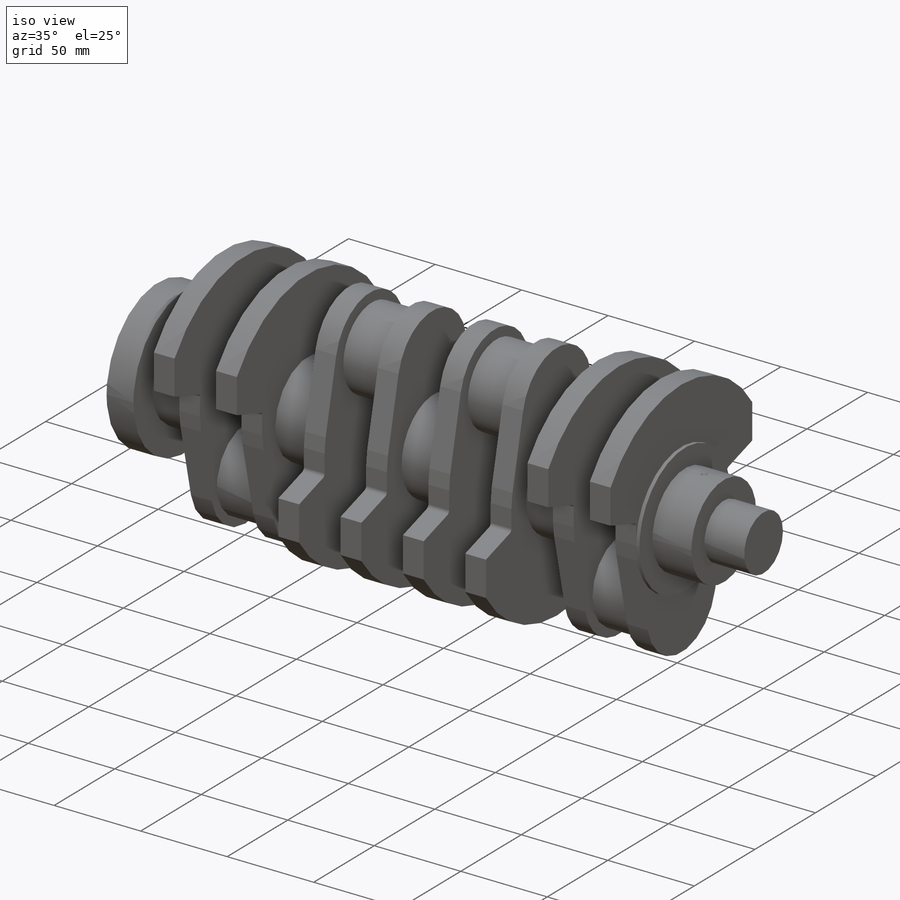
[diagram: iso view]
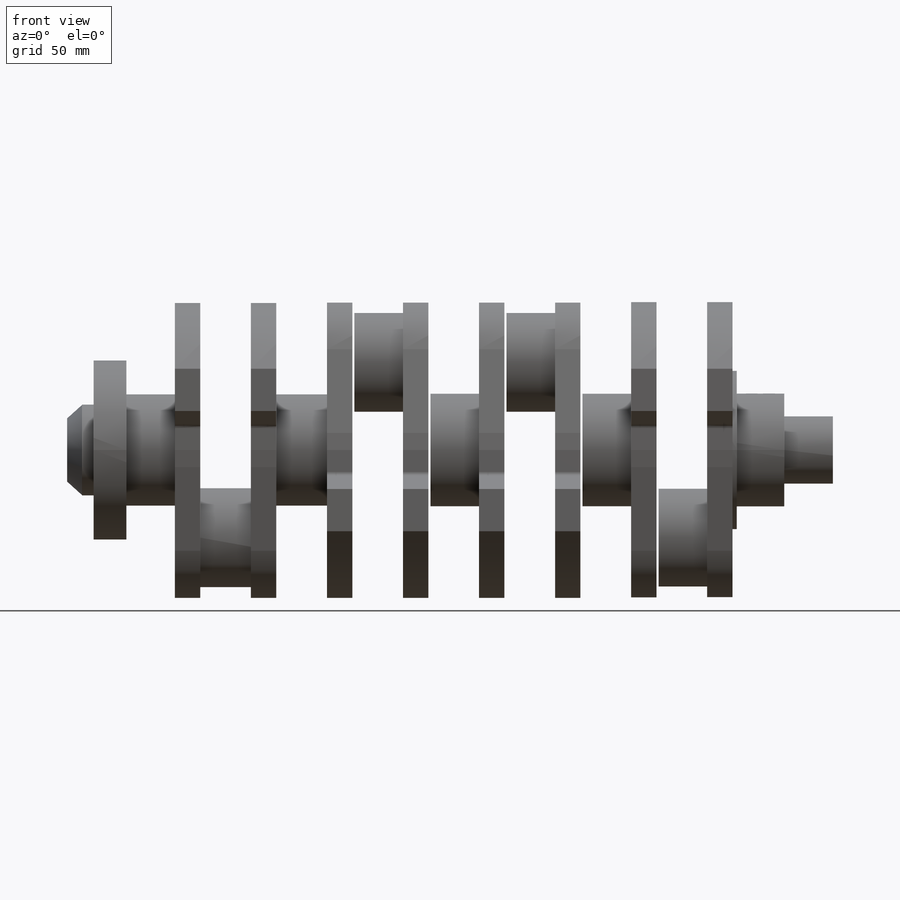
[diagram: front view]
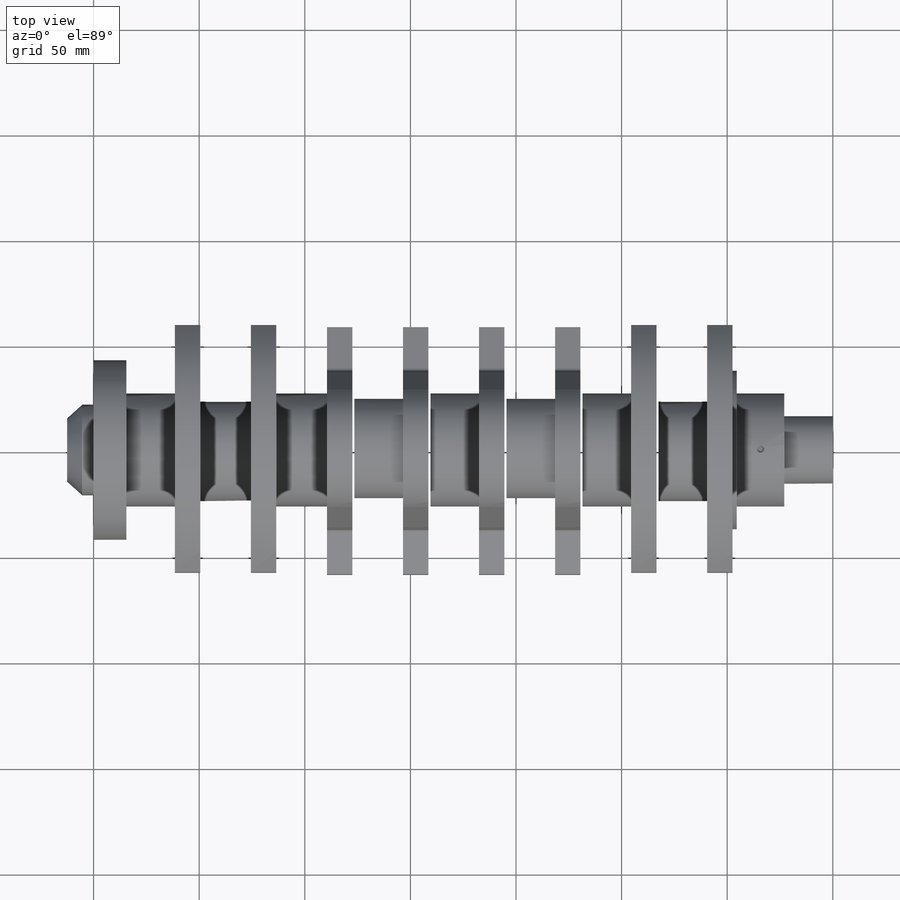
[diagram: top view]
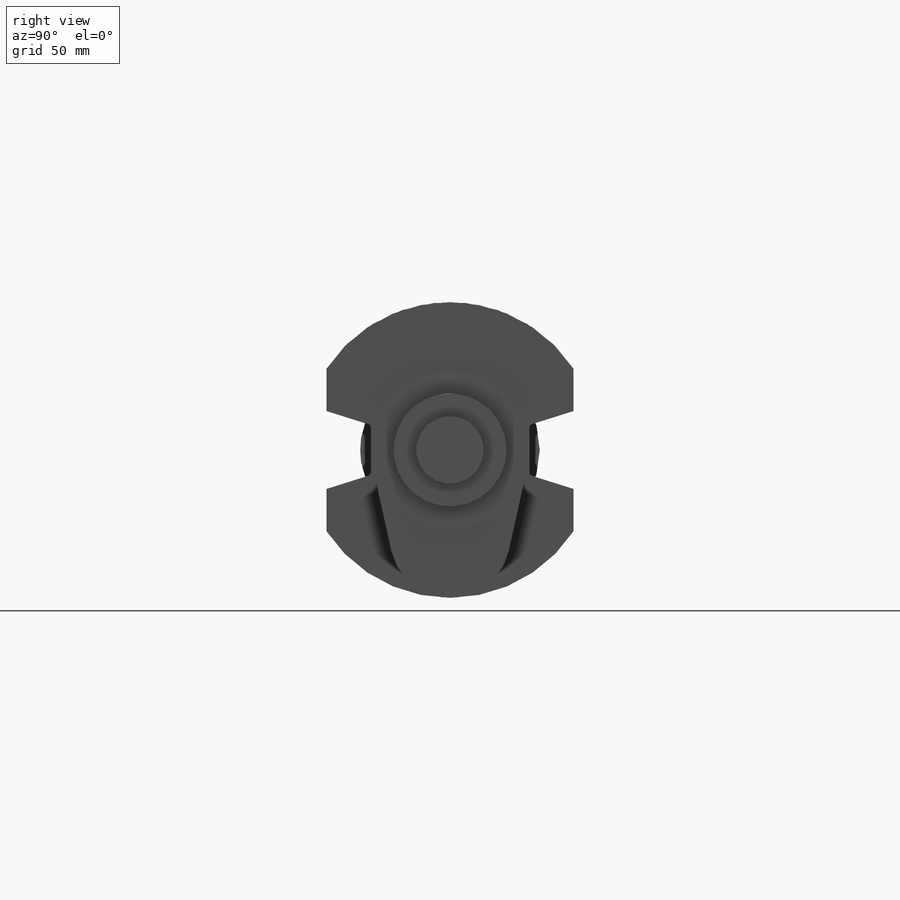
[diagram: right view]
SOLIDWORKS PART (.sldprt)
format: sldprt  version: not decoded by parser v0  size: 625,664 bytes
history: native  units: mm
features: sketch x25, extrude x22, plane x12, fillet x2, material x1, cut_extrude x1, cut_revolve x1 (+13 scaffold rows collapsed)
feature tree (77):
  scaffold x13  (default folders/planes/origin — collapsed)
  material  "Material <não especificado>"
  plane  "Plano frontal"
  plane  "Plano superior"
  plane  "Plano direito"
  sketch  "Esboço1"  dims[D1=32.0mm]
  extrude  "Extrusão1"  Depth=23mm
  sketch  "Esboço2"  dims[D1=53.5mm]
  extrude  "Extrusão2"  Depth=22.5mm
  plane  "Plano1"  Offset=2mm
  sketch  "Esboço5"  dims[c1.D1=75.0mm c1.D3=57.0mm c1.D4=70.0mm c1.D2=41.5mm c1.D5=58.5mm c1.D6=58.5mm c2.D5=20.0mm c2.D6=20.0mm]
  extrude  "Extrusão4"  Depth=12mm
  fillet  "Filete1"  Radius=2mm
  fillet  "Filete2"  Radius=2mm
  plane  "Plano2"  Offset=24mm
  sketch  "Esboço9"  dims[D1=0.0mm]
  sketch  "Esboço10"  dims[D1=47.0mm]
  extrude  "Extrusão7"  Depth=23mm
  extrude  "Extrusão8"  Depth=12mm
  plane  "Plano5"  Offset=24mm
  sketch  "Esboço16"  dims[D1=0.0mm]
  extrude  "Extrusão14"  Depth=12mm
  plane  "Plano6"  Offset=24mm
  sketch  "Esboço17"  dims[D1=0.0mm]
  extrude  "Extrusão15"  Depth=12mm
  plane  "Plano7"  Offset=24mm
  sketch  "Esboço18"  dims[D1=0.0mm]
  extrude  "Extrusão16"  Depth=12mm
  plane  "Plano8"  Offset=24mm
  sketch  "Esboço19"  dims[D1=0.0mm]
  extrude  "Extrusão17"  Depth=12mm
  sketch  "Esboço20"  dims[D1=53.5mm]
  extrude  "Extrusão18"  Depth=23mm
  sketch  "Esboço21"  dims[D1=47.0mm]
  extrude  "Extrusão19"  Depth=23mm
  sketch  "Esboço22"  dims[D1=53.5mm]
  extrude  "Extrusão21"  Depth=23mm
  sketch  "Esboço23"  dims[D1=47.0mm]
  extrude  "Extrusão22"  Depth=23mm
  plane  "Plano9"  Offset=24mm
  sketch  "Esboço25"  dims[D1=0.0mm]
  extrude  "Extrusão23"  Depth=12mm
  plane  "Plano10"  Offset=24mm
  sketch  "Esboço26"  dims[D1=0.0mm]
  extrude  "Extrusão24"  Depth=12mm
  sketch  "Esboço27"  dims[D1=53.5mm]
  extrude  "Extrusão25"  Depth=24mm
  sketch  "Esboço28"  dims[D1=47.0mm]
  extrude  "Extrusão26"  Depth=24mm
  sketch  "Esboço29"  dims[D1=53.5mm]
  extrude  "Extrusão27"  Depth=23mm
  sketch  "Esboço30"  dims[D1=85.0mm]
  extrude  "Extrusão28"  Depth=15.5mm
  sketch  "Esboço31"  dims[D1=43.0mm]
  extrude  "Extrusão29"  Depth=5.5mm
  plane  "Plano11"  Offset=7mm
  sketch  "Esboço33"  dims[D1=30.0mm]
  extrude  "Extrusão34"  Depth=7mm
  sketch  "Esboço34"  dims[D1=16.0mm]
  cut_extrude  "Extrusão35"  Depth=25mm
  sketch  "Esboço35"  dims[D1=64.0mm]
  sketch  "Esboço40"  dims[D1=1.0mm D2=2.5mm D3=11.25mm]
  cut_revolve  "Corte-Revolução3"  Angle=360deg
  sketch  "Esboço41"
  extrude  "Extrusão42"  Depth=2mm
decode coverage: 50 of 51 modeling features carry decoded parameters
note: suppression state not decoded; provenance and decode notes live in map.json
